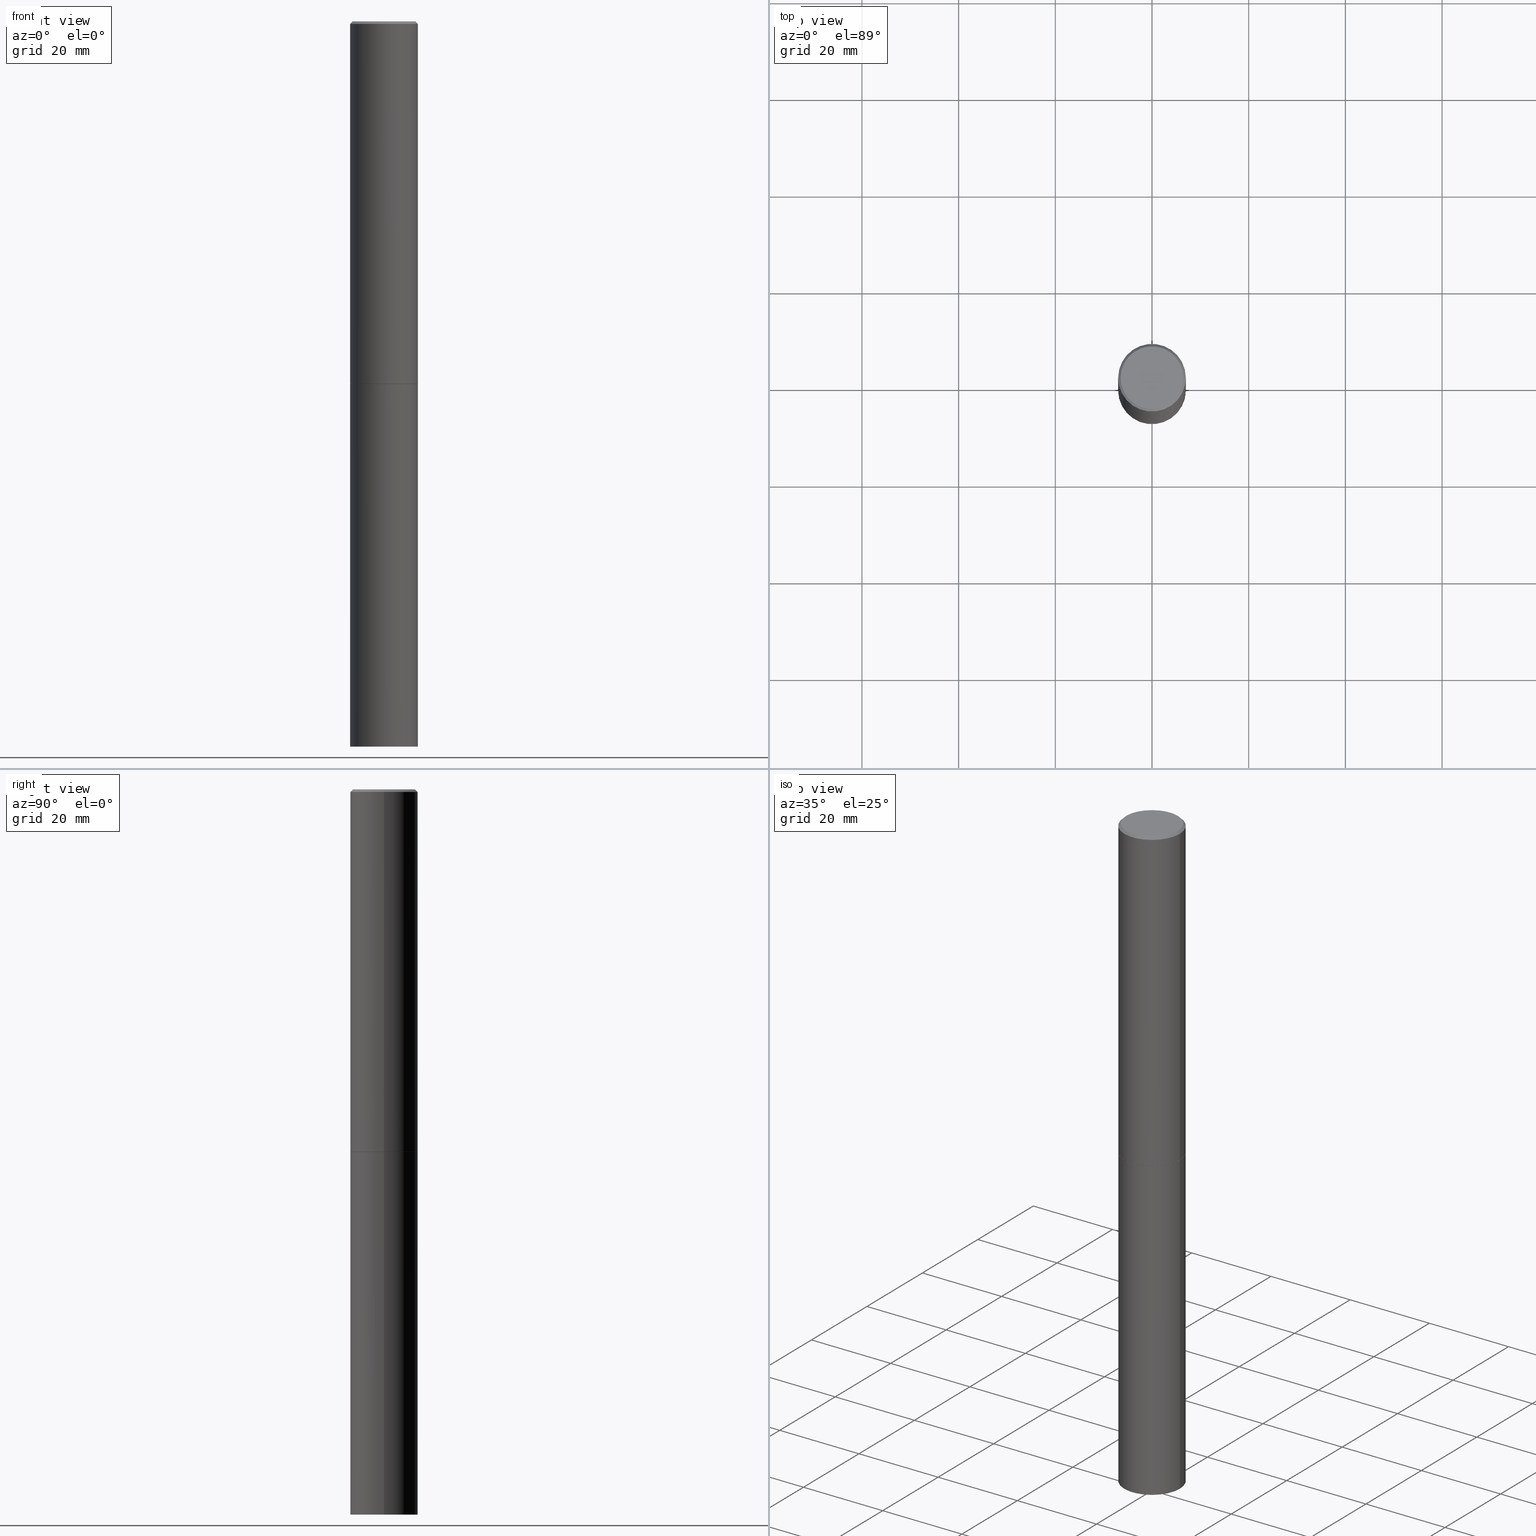
[diagram: canonical four-view strip — front | top / right | iso, engineering-drawing reading convention]
A machine part, canonical four-view strip (front | top / right | iso — engineering-drawing reading convention). The complete STEP part file that produces these views, byte-faithful:
ISO-10303-21;
HEADER;
FILE_DESCRIPTION (( 'STEP AP203' ),
    '1' );
FILE_NAME ('49461.STEP',
    '2024-02-28T22:17:33',
    ( '' ),
    ( '' ),
    'SwSTEP 2.0',
    'SolidWorks 2023',
    '' );
FILE_SCHEMA (( 'CONFIG_CONTROL_DESIGN' ));
ENDSEC;

DATA;
#1 = ADVANCED_FACE ( 'NONE', ( #230 ), #195, .T. ) ;
#2 = SECURITY_CLASSIFICATION ( '', '', #274 ) ;
#3 = DIRECTION ( 'NONE',  ( 1.000000000000000000, -6.982962677686265922E-15, 0.000000000000000000 ) ) ;
#4 = APPROVAL_PERSON_ORGANIZATION ( #106, #302, #15 ) ;
#5 = CARTESIAN_POINT ( 'NONE',  ( 1.924504513970407529E-15, 0.2755999999999896866, -2.952700000000000990 ) ) ;
#6 = DIRECTION ( 'NONE',  ( -2.445468806185136597E-29, 3.491481338843145583E-15, 1.000000000000000000 ) ) ;
#7 = DIRECTION ( 'NONE',  ( 1.000000000000000000, -6.982962677686265922E-15, 0.000000000000000000 ) ) ;
#8 =( NAMED_UNIT ( * ) PLANE_ANGLE_UNIT ( ) SI_UNIT ( $, .RADIAN. ) );
#9 = CARTESIAN_POINT ( 'NONE',  ( 7.220735744022853640E-29, -1.030929694920215659E-14, -2.952700000000000546 ) ) ;
#10 = AXIS2_PLACEMENT_3D ( 'NONE', #76, #105, #81 ) ;
#11 = LOCAL_TIME ( 17, 17, 33.00000000000000000, #342 ) ;
#12 = CC_DESIGN_DATE_AND_TIME_ASSIGNMENT ( #78, #235, ( #233 ) ) ;
#13 = ORIENTED_EDGE ( 'NONE', *, *, #226, .F. ) ;
#14 =( NAMED_UNIT ( * ) SI_UNIT ( $, .STERADIAN. ) SOLID_ANGLE_UNIT ( ) );
#15 = APPROVAL_ROLE ( '' ) ;
#16 = DATE_AND_TIME ( #267, #254 ) ;
#17 = ORIENTED_EDGE ( 'NONE', *, *, #69, .F. ) ;
#18 = VERTEX_POINT ( 'NONE', #288 ) ;
#19 = AXIS2_PLACEMENT_3D ( 'NONE', #30, #359, #177 ) ;
#20 = VERTEX_POINT ( 'NONE', #95 ) ;
#21 =( GEOMETRIC_REPRESENTATION_CONTEXT ( 3 ) GLOBAL_UNCERTAINTY_ASSIGNED_CONTEXT ( ( #324 ) ) GLOBAL_UNIT_ASSIGNED_CONTEXT ( ( #295, #8, #14 ) ) REPRESENTATION_CONTEXT ( 'NONE', 'WORKASPACE' ) );
#22 = APPLICATION_CONTEXT ( 'configuration controlled 3d designs of mechanical parts and assemblies' ) ;
#23 = DIRECTION ( 'NONE',  ( 1.000000000000000000, -6.982962677686267499E-15, 4.876201967404968863E-29 ) ) ;
#24 = ORIENTED_EDGE ( 'NONE', *, *, #103, .T. ) ;
#25 = ORIENTED_EDGE ( 'NONE', *, *, #348, .T. ) ;
#26 = PLANE ( 'NONE',  #31 ) ;
#27 = APPLICATION_PROTOCOL_DEFINITION ( 'international standard', 'config_control_design', 1994, #22 ) ;
#28 = DIRECTION ( 'NONE',  ( 0.7071067811865473507, -7.319954787623256045E-15, -0.7071067811865476838 ) ) ;
#29 = APPROVAL_DATE_TIME ( #325, #167 ) ;
#30 = CARTESIAN_POINT ( 'NONE',  ( 7.220735744022853640E-29, -1.030929694920215659E-14, -2.952700000000000546 ) ) ;
#31 = AXIS2_PLACEMENT_3D ( 'NONE', #5, #119, #225 ) ;
#32 = AXIS2_PLACEMENT_3D ( 'NONE', #326, #185, #236 ) ;
#33 = DIRECTION ( 'NONE',  ( -2.445468806185136597E-29, 3.491481338843145583E-15, 1.000000000000000000 ) ) ;
#34 = DIRECTION ( 'NONE',  ( 1.000000000000000000, -6.982962677686265922E-15, 0.000000000000000000 ) ) ;
#35 = CYLINDRICAL_SURFACE ( 'NONE', #91, 0.2755999999999999006 ) ;
#36 = COORDINATED_UNIVERSAL_TIME_OFFSET ( 5, 0, .BEHIND. ) ;
#37 = DIRECTION ( 'NONE',  ( -1.000000000000000000, 6.982962677686265922E-15, -4.876176775795935793E-29 ) ) ;
#38 = CARTESIAN_POINT ( 'NONE',  ( -0.2746000000000000107, -8.358146596804921801E-15, -2.952700000000000546 ) ) ;
#39 = COORDINATED_UNIVERSAL_TIME_OFFSET ( 5, 0, .BEHIND. ) ;
#40 = ORIENTED_EDGE ( 'NONE', *, *, #320, .T. ) ;
#41 = AXIS2_PLACEMENT_3D ( 'NONE', #343, #87, #140 ) ;
#42 = DESIGN_CONTEXT ( 'detailed design', #265, 'design' ) ;
#43 = CYLINDRICAL_SURFACE ( 'NONE', #164, 0.2755999999999999006 ) ;
#44 = ORIENTED_EDGE ( 'NONE', *, *, #92, .F. ) ;
#45 = DIRECTION ( 'NONE',  ( -2.445468806185136597E-29, 3.491481338843145583E-15, 1.000000000000000000 ) ) ;
#46 = PERSON_AND_ORGANIZATION_ROLE ( 'creator' ) ;
#47 = CC_DESIGN_PERSON_AND_ORGANIZATION_ASSIGNMENT ( #360, #96, ( #233 ) ) ;
#48 = PERSON_AND_ORGANIZATION ( #157, #232 ) ;
#49 = CLOSED_SHELL ( 'NONE', ( #229, #287, #55, #79 ) ) ;
#50 = LINE ( 'NONE', #162, #129 ) ;
#51 = FACE_OUTER_BOUND ( 'NONE', #192, .T. ) ;
#52 = DIRECTION ( 'NONE',  ( 2.445468806185136597E-29, -3.491481338843145583E-15, -1.000000000000000000 ) ) ;
#53 = CARTESIAN_POINT ( 'NONE',  ( 4.890937612370288923E-31, -6.982962677686312563E-17, -0.02000000000000006287 ) ) ;
#54 = ORIENTED_EDGE ( 'NONE', *, *, #356, .F. ) ;
#55 = ADVANCED_FACE ( 'NONE', ( #319 ), #26, .F. ) ;
#56 = DATE_TIME_ROLE ( 'classification_date' ) ;
#57 = ORIENTED_EDGE ( 'NONE', *, *, #356, .T. ) ;
#58 = ORIENTED_EDGE ( 'NONE', *, *, #99, .T. ) ;
#59 = CC_DESIGN_PERSON_AND_ORGANIZATION_ASSIGNMENT ( #158, #159, ( #353 ) ) ;
#60 = DIRECTION ( 'NONE',  ( -2.445468806185136597E-29, 3.491481338843145583E-15, 1.000000000000000000 ) ) ;
#61 = ADVANCED_FACE ( 'NONE', ( #350 ), #314, .F. ) ;
#62 = CC_DESIGN_APPROVAL ( #331, ( #233 ) ) ;
#63 = CARTESIAN_POINT ( 'NONE',  ( 0.2746000000000000107, -1.222681850049480396E-14, -2.952700000000000546 ) ) ;
#64 = DIRECTION ( 'NONE',  ( 1.000000000000000000, -6.982962677686265922E-15, 4.876176775795935793E-29 ) ) ;
#65 = FACE_OUTER_BOUND ( 'NONE', #209, .T. ) ;
#66 = DIRECTION ( 'NONE',  ( -2.445468806185136877E-29, 3.491481338843145188E-15, 1.000000000000000000 ) ) ;
#67 = CARTESIAN_POINT ( 'NONE',  ( 7.220735744022853640E-29, -1.030929694920215659E-14, -2.952700000000000546 ) ) ;
#68 = CARTESIAN_POINT ( 'NONE',  ( -1.043851414335219820E-46, 1.490343170380447200E-32, 4.268512490100411279E-18 ) ) ;
#69 = EDGE_CURVE ( 'NONE', #80, #311, #223, .T. ) ;
#70 = CARTESIAN_POINT ( 'NONE',  ( -0.2755999999999999006, 1.958255779754835406E-15, -1.355658510874251446E-29 ) ) ;
#71 = AXIS2_PLACEMENT_3D ( 'NONE', #9, #351, #121 ) ;
#72 = DIRECTION ( 'NONE',  ( -2.445468806185136597E-29, 3.491481338843145583E-15, 1.000000000000000000 ) ) ;
#73 = MECHANICAL_CONTEXT ( 'NONE', #22, 'mechanical' ) ;
#74 = ORIENTED_EDGE ( 'NONE', *, *, #168, .F. ) ;
#75 = PERSON_AND_ORGANIZATION_ROLE ( 'design_owner' ) ;
#76 = CARTESIAN_POINT ( 'NONE',  ( 7.218290275216666916E-29, -1.030580546786331359E-14, -2.951700000000000212 ) ) ;
#77 = APPROVAL_PERSON_ORGANIZATION ( #284, #167, #137 ) ;
#78 = DATE_AND_TIME ( #263, #202 ) ;
#79 = ADVANCED_FACE ( 'NONE', ( #316 ), #113, .T. ) ;
#80 = VERTEX_POINT ( 'NONE', #310 ) ;
#81 = DIRECTION ( 'NONE',  ( 1.000000000000000000, -6.982962677686264344E-15, 0.000000000000000000 ) ) ;
#82 = EDGE_LOOP ( 'NONE', ( #114, #178 ) ) ;
#83 = CIRCLE ( 'NONE', #329, 0.2755999999999997341 ) ;
#84 = CC_DESIGN_SECURITY_CLASSIFICATION ( #2, ( #353 ) ) ;
#85 = DIRECTION ( 'NONE',  ( -2.445468806185136597E-29, 3.491481338843145583E-15, 1.000000000000000000 ) ) ;
#86 = DIRECTION ( 'NONE',  ( -2.445468806185136597E-29, 3.491481338843145583E-15, 1.000000000000000000 ) ) ;
#87 = DIRECTION ( 'NONE',  ( -2.445468806185136597E-29, 3.491481338843145583E-15, 1.000000000000000000 ) ) ;
#88 = VERTEX_POINT ( 'NONE', #111 ) ;
#89 = LINE ( 'NONE', #169, #361 ) ;
#90 = CARTESIAN_POINT ( 'NONE',  ( -0.2756000000000000116, -1.350586421811533611E-14, -5.905499999999999972 ) ) ;
#91 = AXIS2_PLACEMENT_3D ( 'NONE', #203, #315, #136 ) ;
#92 = EDGE_CURVE ( 'NONE', #20, #197, #257, .T. ) ;
#93 =( LENGTH_UNIT ( ) NAMED_UNIT ( * ) SI_UNIT ( $, .METRE. ) );
#94 = CARTESIAN_POINT ( 'NONE',  ( 1.784845260416607174E-15, 0.2555999999999996608, -8.902883739632567265E-16 ) ) ;
#95 = CARTESIAN_POINT ( 'NONE',  ( -0.2555999999999996608, 1.819760073805038823E-15, 4.268512490087807223E-18 ) ) ;
#96 = PERSON_AND_ORGANIZATION_ROLE ( 'creator' ) ;
#97 = AXIS2_PLACEMENT_3D ( 'NONE', #286, #33, #317 ) ;
#98 = CIRCLE ( 'NONE', #124, 0.2756000000000000116 ) ;
#99 = EDGE_CURVE ( 'NONE', #363, #362, #246, .T. ) ;
#100 = CARTESIAN_POINT ( 'NONE',  ( 0.2756000000000000116, -1.924504513970335348E-15, 1.343874319409359987E-29 ) ) ;
#101 = ORIENTED_EDGE ( 'NONE', *, *, #258, .T. ) ;
#102 = DIRECTION ( 'NONE',  ( 2.438088387897960049E-29, -3.491481338843145188E-15, -1.000000000000000000 ) ) ;
#103 = EDGE_CURVE ( 'NONE', #109, #88, #318, .T. ) ;
#104 = APPROVAL_STATUS ( 'not_yet_approved' ) ;
#105 = DIRECTION ( 'NONE',  ( -2.445468806185136597E-29, 3.491481338843145583E-15, 1.000000000000000000 ) ) ;
#106 = PERSON_AND_ORGANIZATION ( #157, #232 ) ;
#107 = EDGE_CURVE ( 'NONE', #80, #18, #313, .T. ) ;
#108 = ADVANCED_BREP_SHAPE_REPRESENTATION ( '49461', ( #212, #208, #282 ), #21 ) ;
#109 = VERTEX_POINT ( 'NONE', #245 ) ;
#110 = AXIS2_PLACEMENT_3D ( 'NONE', #336, #45, #333 ) ;
#111 = CARTESIAN_POINT ( 'NONE',  ( -0.2755999999999997341, 1.854674887193470078E-15, -0.02000000000000006287 ) ) ;
#112 = ORIENTED_EDGE ( 'NONE', *, *, #187, .T. ) ;
#113 = CYLINDRICAL_SURFACE ( 'NONE', #41, 0.2756000000000000116 ) ;
#114 = ORIENTED_EDGE ( 'NONE', *, *, #99, .F. ) ;
#115 = DIRECTION ( 'NONE',  ( -0.7071067811865473507, 2.468850131082255088E-15, -0.7071067811865476838 ) ) ;
#116 = CC_DESIGN_PERSON_AND_ORGANIZATION_ASSIGNMENT ( #132, #75, ( #289 ) ) ;
#117 = LINE ( 'NONE', #100, #155 ) ;
#118 = ORIENTED_EDGE ( 'NONE', *, *, #338, .F. ) ;
#119 = DIRECTION ( 'NONE',  ( 2.438088387897960049E-29, -3.491481338843145188E-15, -1.000000000000000000 ) ) ;
#120 = DIRECTION ( 'NONE',  ( 1.000000000000000000, -6.982962677686265922E-15, 0.000000000000000000 ) ) ;
#121 = DIRECTION ( 'NONE',  ( 1.000000000000000000, -6.982962677686262766E-15, 0.000000000000000000 ) ) ;
#122 = AXIS2_PLACEMENT_3D ( 'NONE', #216, #85, #306 ) ;
#123 = CONICAL_SURFACE ( 'NONE', #110, 0.2746000000000000107, 0.7853981633973288190 ) ;
#124 = AXIS2_PLACEMENT_3D ( 'NONE', #211, #72, #34 ) ;
#125 = DIRECTION ( 'NONE',  ( 1.000000000000000000, -6.982962677686265922E-15, 0.000000000000000000 ) ) ;
#126 = ADVANCED_FACE ( 'NONE', ( #262 ), #357, .F. ) ;
#127 = ORIENTED_EDGE ( 'NONE', *, *, #207, .F. ) ;
#128 = ORIENTED_EDGE ( 'NONE', *, *, #320, .F. ) ;
#129 = VECTOR ( 'NONE', #28, 39.37007874015748143 ) ;
#130 = DIRECTION ( 'NONE',  ( 0.000000000000000000, 0.000000000000000000, 1.000000000000000000 ) ) ;
#131 = ORIENTED_EDGE ( 'NONE', *, *, #242, .F. ) ;
#132 = PERSON_AND_ORGANIZATION ( #157, #232 ) ;
#133 = CC_DESIGN_PERSON_AND_ORGANIZATION_ASSIGNMENT ( #48, #219, ( #2 ) ) ;
#134 = CARTESIAN_POINT ( 'NONE',  ( 0.2756000000000000116, -2.254344756050852692E-14, -5.905499999999999972 ) ) ;
#135 = CIRCLE ( 'NONE', #10, 0.2756000000000000671 ) ;
#136 = DIRECTION ( 'NONE',  ( 1.000000000000000000, -6.982962677686267499E-15, 4.876176775795935793E-29 ) ) ;
#137 = APPROVAL_ROLE ( '' ) ;
#138 = FACE_OUTER_BOUND ( 'NONE', #166, .T. ) ;
#139 = ORIENTED_EDGE ( 'NONE', *, *, #303, .T. ) ;
#140 = DIRECTION ( 'NONE',  ( 1.000000000000000000, -6.982962677686267499E-15, 4.876176775795935793E-29 ) ) ;
#141 = EDGE_LOOP ( 'NONE', ( #280, #307, #139, #131 ) ) ;
#142 = AXIS2_PLACEMENT_3D ( 'NONE', #227, #102, #200 ) ;
#143 = ORIENTED_EDGE ( 'NONE', *, *, #293, .T. ) ;
#144 = ADVANCED_FACE ( 'NONE', ( #240 ), #231, .T. ) ;
#145 = DIRECTION ( 'NONE',  ( -2.445468806185136597E-29, 3.491481338843145583E-15, 1.000000000000000000 ) ) ;
#146 = AXIS2_PLACEMENT_3D ( 'NONE', #244, #86, #191 ) ;
#147 = VECTOR ( 'NONE', #323, 39.37007874015748143 ) ;
#148 = CARTESIAN_POINT ( 'NONE',  ( 0.2756000000000000116, -1.223380146317248997E-14, -2.952700000000000102 ) ) ;
#149 = CARTESIAN_POINT ( 'NONE',  ( 0.2755999999999997341, -1.960582874962695433E-15, -0.02000000000000006287 ) ) ;
#150 = LINE ( 'NONE', #183, #147 ) ;
#151 = APPROVAL_PERSON_ORGANIZATION ( #334, #331, #154 ) ;
#152 = DIRECTION ( 'NONE',  ( 2.438088387897960049E-29, -3.491481338843145188E-15, -1.000000000000000000 ) ) ;
#153 = DIRECTION ( 'NONE',  ( -0.7071067811864629737, 7.493145998870048082E-15, 0.7071067811866319497 ) ) ;
#154 = APPROVAL_ROLE ( '' ) ;
#155 = VECTOR ( 'NONE', #206, 39.37007874015748143 ) ;
#156 = PLANE ( 'NONE',  #142 ) ;
#157 = PERSON ( 'UNSPECIFIED', 'UNSPECIFIED', 'UNSPECIFIED', ('UNSPECIFIED'), ('UNSPECIFIED'), ('UNSPECIFIED') ) ;
#158 = PERSON_AND_ORGANIZATION ( #157, #232 ) ;
#159 = PERSON_AND_ORGANIZATION_ROLE ( 'design_supplier' ) ;
#160 = CARTESIAN_POINT ( 'NONE',  ( -0.2756000000000000116, -1.350586421811533611E-14, -2.952700000000000102 ) ) ;
#161 = EDGE_LOOP ( 'NONE', ( #118, #366, #101, #74 ) ) ;
#162 = CARTESIAN_POINT ( 'NONE',  ( 0.2755999999999997341, -1.960582874962695433E-15, -0.02000000000000006287 ) ) ;
#163 = ORIENTED_EDGE ( 'NONE', *, *, #332, .F. ) ;
#164 = AXIS2_PLACEMENT_3D ( 'NONE', #217, #349, #260 ) ;
#165 = LOCAL_TIME ( 17, 17, 33.00000000000000000, #36 ) ;
#166 = EDGE_LOOP ( 'NONE', ( #247, #24, #201, #344 ) ) ;
#167 = APPROVAL ( #271, 'UNSPECIFIED' ) ;
#168 = EDGE_CURVE ( 'NONE', #273, #237, #170, .T. ) ;
#169 = CARTESIAN_POINT ( 'NONE',  ( -0.2756000000000000116, 1.958255779754836195E-15, -1.355658510874252007E-29 ) ) ;
#170 = CIRCLE ( 'NONE', #122, 0.2756000000000000116 ) ;
#171 = DIRECTION ( 'NONE',  ( -2.438088387897960049E-29, 3.491481338843145188E-15, 1.000000000000000000 ) ) ;
#172 = DIMENSIONAL_EXPONENTS ( 1.000000000000000000, 0.000000000000000000, 0.000000000000000000, 0.000000000000000000, 0.000000000000000000, 0.000000000000000000, 0.000000000000000000 ) ;
#173 = SHAPE_DEFINITION_REPRESENTATION ( #335, #108 ) ;
#174 = AXIS2_PLACEMENT_3D ( 'NONE', #224, #249, #256 ) ;
#175 = LOCAL_TIME ( 17, 17, 33.00000000000000000, #264 ) ;
#176 = ORIENTED_EDGE ( 'NONE', *, *, #168, .T. ) ;
#177 = DIRECTION ( 'NONE',  ( 1.000000000000000000, -6.982962677686262766E-15, 0.000000000000000000 ) ) ;
#178 = ORIENTED_EDGE ( 'NONE', *, *, #322, .F. ) ;
#179 = DATE_AND_TIME ( #276, #165 ) ;
#180 = EDGE_LOOP ( 'NONE', ( #194, #112, #143, #128 ) ) ;
#181 = CC_DESIGN_PERSON_AND_ORGANIZATION_ASSIGNMENT ( #184, #46, ( #353 ) ) ;
#182 = APPROVAL_STATUS ( 'not_yet_approved' ) ;
#183 = CARTESIAN_POINT ( 'NONE',  ( 0.2755999999999999006, -1.924504513970334560E-15, 1.343874319409359427E-29 ) ) ;
#184 = PERSON_AND_ORGANIZATION ( #157, #232 ) ;
#185 = DIRECTION ( 'NONE',  ( 2.445468806185136597E-29, -3.491481338843145583E-15, -1.000000000000000000 ) ) ;
#186 = DIRECTION ( 'NONE',  ( -1.000000000000000000, 6.982962677686265922E-15, 0.000000000000000000 ) ) ;
#187 = EDGE_CURVE ( 'NONE', #197, #270, #50, .T. ) ;
#188 = AXIS2_PLACEMENT_3D ( 'NONE', #94, #152, #37 ) ;
#189 = CIRCLE ( 'NONE', #268, 0.2756000000000000116 ) ;
#190 = ORIENTED_EDGE ( 'NONE', *, *, #69, .T. ) ;
#191 = DIRECTION ( 'NONE',  ( 1.000000000000000000, -6.982962677686264344E-15, 0.000000000000000000 ) ) ;
#192 = EDGE_LOOP ( 'NONE', ( #58, #243, #54, #241 ) ) ;
#193 = CARTESIAN_POINT ( 'NONE',  ( -0.2755999999999997341, 1.854674887193470078E-15, -0.02000000000000006287 ) ) ;
#194 = ORIENTED_EDGE ( 'NONE', *, *, #348, .F. ) ;
#195 = CONICAL_SURFACE ( 'NONE', #304, 0.2746000000000000107, 0.7853981633973288190 ) ;
#196 = CALENDAR_DATE ( 2024, 28, 2 ) ;
#197 = VERTEX_POINT ( 'NONE', #222 ) ;
#198 = DIRECTION ( 'NONE',  ( -2.445468806185136597E-29, 3.491481338843145583E-15, 1.000000000000000000 ) ) ;
#199 = ORIENTED_EDGE ( 'NONE', *, *, #242, .T. ) ;
#200 = DIRECTION ( 'NONE',  ( -1.000000000000000000, 6.982962677686265922E-15, -4.876176775795935793E-29 ) ) ;
#201 = ORIENTED_EDGE ( 'NONE', *, *, #293, .F. ) ;
#202 = LOCAL_TIME ( 17, 17, 33.00000000000000000, #299 ) ;
#203 = CARTESIAN_POINT ( 'NONE',  ( 0.000000000000000000, 0.000000000000000000, 0.000000000000000000 ) ) ;
#204 = DIRECTION ( 'NONE',  ( 1.000000000000000000, -6.982962677686262766E-15, 0.000000000000000000 ) ) ;
#205 = DIRECTION ( 'NONE',  ( -2.445468806185136877E-29, 3.491481338843145188E-15, 1.000000000000000000 ) ) ;
#206 = DIRECTION ( 'NONE',  ( -2.445468806185136877E-29, 3.491481338843145188E-15, 1.000000000000000000 ) ) ;
#207 = EDGE_CURVE ( 'NONE', #109, #18, #135, .T. ) ;
#208 = MANIFOLD_SOLID_BREP ( 'Body-Move/Copy2[2]', #277 ) ;
#209 = EDGE_LOOP ( 'NONE', ( #251, #44, #40, #199 ) ) ;
#210 = CALENDAR_DATE ( 2024, 28, 2 ) ;
#211 = CARTESIAN_POINT ( 'NONE',  ( 1.444171603492632270E-28, -2.061894304653819197E-14, -5.905499999999999972 ) ) ;
#212 = MANIFOLD_SOLID_BREP ( 'Body-Move/Copy2[1]', #49 ) ;
#213 = CIRCLE ( 'NONE', #321, 0.2555999999999996608 ) ;
#214 = FACE_OUTER_BOUND ( 'NONE', #327, .T. ) ;
#215 = CARTESIAN_POINT ( 'NONE',  ( 4.890937612370288923E-31, -6.982962677686312563E-17, -0.02000000000000006287 ) ) ;
#216 = CARTESIAN_POINT ( 'NONE',  ( 7.220735744022852519E-29, -1.030929694920215502E-14, -2.952700000000000102 ) ) ;
#217 = CARTESIAN_POINT ( 'NONE',  ( 0.000000000000000000, 0.000000000000000000, 0.000000000000000000 ) ) ;
#218 = CARTESIAN_POINT ( 'NONE',  ( -0.2746000000000000107, -8.352848142456699399E-15, -2.952700000000000546 ) ) ;
#219 = PERSON_AND_ORGANIZATION_ROLE ( 'classification_officer' ) ;
#220 = ORIENTED_EDGE ( 'NONE', *, *, #259, .F. ) ;
#221 = ADVANCED_FACE ( 'NONE', ( #214 ), #123, .T. ) ;
#222 = CARTESIAN_POINT ( 'NONE',  ( 0.2555999999999996608, -1.857063081596548059E-15, 4.268512490113146298E-18 ) ) ;
#223 = CIRCLE ( 'NONE', #71, 0.2746000000000000107 ) ;
#224 = CARTESIAN_POINT ( 'NONE',  ( 0.000000000000000000, 0.000000000000000000, 0.000000000000000000 ) ) ;
#225 = DIRECTION ( 'NONE',  ( -1.000000000000000000, 6.982962677686265922E-15, -4.876176775795935793E-29 ) ) ;
#226 = EDGE_CURVE ( 'NONE', #18, #109, #346, .T. ) ;
#227 = CARTESIAN_POINT ( 'NONE',  ( 1.924504513970479316E-15, 0.2755999999999794170, -5.905500000000000860 ) ) ;
#228 = AXIS2_PLACEMENT_3D ( 'NONE', #215, #261, #125 ) ;
#229 = ADVANCED_FACE ( 'NONE', ( #51 ), #340, .T. ) ;
#230 = FACE_OUTER_BOUND ( 'NONE', #285, .T. ) ;
#231 = CONICAL_SURFACE ( 'NONE', #281, 0.2755999999999997341, 0.7853981633974480570 ) ;
#232 = ORGANIZATION ( 'UNSPECIFIED', 'UNSPECIFIED', '' ) ;
#233 = PRODUCT_DEFINITION ( 'UNKNOWN', '', #353, #42 ) ;
#234 = ORIENTED_EDGE ( 'NONE', *, *, #259, .T. ) ;
#235 = DATE_TIME_ROLE ( 'creation_date' ) ;
#236 = DIRECTION ( 'NONE',  ( -1.000000000000000000, 6.982962677686265922E-15, 0.000000000000000000 ) ) ;
#237 = VERTEX_POINT ( 'NONE', #148 ) ;
#238 = DIRECTION ( 'NONE',  ( 1.000000000000000000, 0.000000000000000000, 0.000000000000000000 ) ) ;
#239 = VECTOR ( 'NONE', #153, 39.37007874015748854 ) ;
#240 = FACE_OUTER_BOUND ( 'NONE', #180, .T. ) ;
#241 = ORIENTED_EDGE ( 'NONE', *, *, #258, .F. ) ;
#242 = EDGE_CURVE ( 'NONE', #88, #270, #83, .T. ) ;
#243 = ORIENTED_EDGE ( 'NONE', *, *, #338, .T. ) ;
#244 = CARTESIAN_POINT ( 'NONE',  ( 7.218290275216666916E-29, -1.030580546786331359E-14, -2.951700000000000212 ) ) ;
#245 = CARTESIAN_POINT ( 'NONE',  ( -0.2756000000000000671, -3.229561767565248303E-15, -2.951700000000000212 ) ) ;
#246 = CIRCLE ( 'NONE', #266, 0.2756000000000000116 ) ;
#247 = ORIENTED_EDGE ( 'NONE', *, *, #226, .T. ) ;
#248 = ORIENTED_EDGE ( 'NONE', *, *, #107, .F. ) ;
#249 = DIRECTION ( 'NONE',  ( -2.445468806185136597E-29, 3.491481338843145583E-15, 1.000000000000000000 ) ) ;
#250 = CC_DESIGN_DATE_AND_TIME_ASSIGNMENT ( #309, #56, ( #2 ) ) ;
#251 = ORIENTED_EDGE ( 'NONE', *, *, #187, .F. ) ;
#252 = CARTESIAN_POINT ( 'NONE',  ( 7.220735744022852519E-29, -1.030929694920215502E-14, -2.952700000000000102 ) ) ;
#253 = AXIS2_PLACEMENT_3D ( 'NONE', #255, #171, #64 ) ;
#254 = LOCAL_TIME ( 17, 17, 33.00000000000000000, #39 ) ;
#255 = CARTESIAN_POINT ( 'NONE',  ( 7.220735744022853640E-29, -1.030929694920215659E-14, -2.952700000000000546 ) ) ;
#256 = DIRECTION ( 'NONE',  ( 1.000000000000000000, -6.982962677686267499E-15, 4.876176775795935793E-29 ) ) ;
#257 = CIRCLE ( 'NONE', #97, 0.2555999999999996608 ) ;
#258 = EDGE_CURVE ( 'NONE', #363, #237, #117, .T. ) ;
#259 = EDGE_CURVE ( 'NONE', #311, #80, #328, .T. ) ;
#260 = DIRECTION ( 'NONE',  ( 1.000000000000000000, -6.982962677686267499E-15, 4.876176775795935793E-29 ) ) ;
#261 = DIRECTION ( 'NONE',  ( -2.445468806185136597E-29, 3.491481338843145583E-15, 1.000000000000000000 ) ) ;
#262 = FACE_OUTER_BOUND ( 'NONE', #341, .T. ) ;
#263 = CALENDAR_DATE ( 2024, 28, 2 ) ;
#264 = COORDINATED_UNIVERSAL_TIME_OFFSET ( 5, 0, .BEHIND. ) ;
#265 = APPLICATION_CONTEXT ( 'configuration controlled 3d designs of mechanical parts and assemblies' ) ;
#266 = AXIS2_PLACEMENT_3D ( 'NONE', #354, #60, #7 ) ;
#267 = CALENDAR_DATE ( 2024, 28, 2 ) ;
#268 = AXIS2_PLACEMENT_3D ( 'NONE', #252, #6, #120 ) ;
#269 = ORIENTED_EDGE ( 'NONE', *, *, #332, .T. ) ;
#270 = VERTEX_POINT ( 'NONE', #149 ) ;
#271 = APPROVAL_STATUS ( 'not_yet_approved' ) ;
#272 = ADVANCED_FACE ( 'NONE', ( #297 ), #35, .T. ) ;
#273 = VERTEX_POINT ( 'NONE', #160 ) ;
#274 = SECURITY_CLASSIFICATION_LEVEL ( 'unclassified' ) ;
#275 = ADVANCED_FACE ( 'NONE', ( #138 ), #43, .T. ) ;
#276 = CALENDAR_DATE ( 2024, 28, 2 ) ;
#277 = CLOSED_SHELL ( 'NONE', ( #221, #275, #144, #308, #272, #1, #61, #126 ) ) ;
#278 = CC_DESIGN_APPROVAL ( #302, ( #353 ) ) ;
#279 = ORIENTED_EDGE ( 'NONE', *, *, #107, .T. ) ;
#280 = ORIENTED_EDGE ( 'NONE', *, *, #103, .F. ) ;
#281 = AXIS2_PLACEMENT_3D ( 'NONE', #365, #52, #186 ) ;
#282 = AXIS2_PLACEMENT_3D ( 'NONE', #292, #130, #238 ) ;
#283 = EDGE_LOOP ( 'NONE', ( #57, #176 ) ) ;
#284 = PERSON_AND_ORGANIZATION ( #157, #232 ) ;
#285 = EDGE_LOOP ( 'NONE', ( #163, #234, #279, #127 ) ) ;
#286 = CARTESIAN_POINT ( 'NONE',  ( -1.043851414335219820E-46, 1.490343170380447200E-32, 4.268512490100411279E-18 ) ) ;
#287 = ADVANCED_FACE ( 'NONE', ( #312 ), #156, .T. ) ;
#288 = CARTESIAN_POINT ( 'NONE',  ( 0.2756000000000000671, -1.223030998183364854E-14, -2.951700000000000212 ) ) ;
#289 = PRODUCT ( '49461', '49461', '', ( #73 ) ) ;
#290 = DIRECTION ( 'NONE',  ( 0.7071067811864629737, -2.468850131081371564E-15, 0.7071067811866319497 ) ) ;
#291 = EDGE_LOOP ( 'NONE', ( #17, #220 ) ) ;
#292 = CARTESIAN_POINT ( 'NONE',  ( 0.000000000000000000, 0.000000000000000000, 0.000000000000000000 ) ) ;
#293 = EDGE_CURVE ( 'NONE', #270, #88, #352, .T. ) ;
#294 = VECTOR ( 'NONE', #66, 39.37007874015748143 ) ;
#295 =( CONVERSION_BASED_UNIT ( 'INCH', #355 ) LENGTH_UNIT ( ) NAMED_UNIT ( #172 ) );
#296 = PRODUCT_RELATED_PRODUCT_CATEGORY ( 'detail', '', ( #289 ) ) ;
#297 = FACE_OUTER_BOUND ( 'NONE', #141, .T. ) ;
#298 = LINE ( 'NONE', #38, #239 ) ;
#299 = COORDINATED_UNIVERSAL_TIME_OFFSET ( 5, 0, .BEHIND. ) ;
#300 = APPROVAL_DATE_TIME ( #179, #331 ) ;
#301 = APPROVAL_DATE_TIME ( #16, #302 ) ;
#302 = APPROVAL ( #182, 'UNSPECIFIED' ) ;
#303 = EDGE_CURVE ( 'NONE', #18, #270, #150, .T. ) ;
#304 = AXIS2_PLACEMENT_3D ( 'NONE', #67, #358, #204 ) ;
#305 = CONICAL_SURFACE ( 'NONE', #32, 0.2755999999999997341, 0.7853981633974480570 ) ;
#306 = DIRECTION ( 'NONE',  ( 1.000000000000000000, -6.982962677686265922E-15, 0.000000000000000000 ) ) ;
#307 = ORIENTED_EDGE ( 'NONE', *, *, #207, .T. ) ;
#308 = ADVANCED_FACE ( 'NONE', ( #65 ), #305, .T. ) ;
#309 = DATE_AND_TIME ( #196, #11 ) ;
#310 = CARTESIAN_POINT ( 'NONE',  ( 0.2746000000000000107, -1.222681850049480396E-14, -2.952700000000000546 ) ) ;
#311 = VERTEX_POINT ( 'NONE', #218 ) ;
#312 = FACE_OUTER_BOUND ( 'NONE', #82, .T. ) ;
#313 = LINE ( 'NONE', #63, #337 ) ;
#314 = PLANE ( 'NONE',  #253 ) ;
#315 = DIRECTION ( 'NONE',  ( -2.445468806185136597E-29, 3.491481338843145583E-15, 1.000000000000000000 ) ) ;
#316 = FACE_OUTER_BOUND ( 'NONE', #161, .T. ) ;
#317 = DIRECTION ( 'NONE',  ( 1.000000000000000000, -6.982962677686267499E-15, 4.876201967404968863E-29 ) ) ;
#318 = LINE ( 'NONE', #70, #294 ) ;
#319 = FACE_OUTER_BOUND ( 'NONE', #283, .T. ) ;
#320 = EDGE_CURVE ( 'NONE', #20, #88, #339, .T. ) ;
#321 = AXIS2_PLACEMENT_3D ( 'NONE', #68, #145, #23 ) ;
#322 = EDGE_CURVE ( 'NONE', #362, #363, #98, .T. ) ;
#323 = DIRECTION ( 'NONE',  ( -2.445468806185136877E-29, 3.491481338843145188E-15, 1.000000000000000000 ) ) ;
#324 = UNCERTAINTY_MEASURE_WITH_UNIT (LENGTH_MEASURE( 1.000000000000000082E-05 ), #295, 'distance_accuracy_value', 'NONE');
#325 = DATE_AND_TIME ( #210, #175 ) ;
#326 = CARTESIAN_POINT ( 'NONE',  ( 4.890937612370288923E-31, -6.982962677686312563E-17, -0.02000000000000006287 ) ) ;
#327 = EDGE_LOOP ( 'NONE', ( #190, #269, #13, #248 ) ) ;
#328 = CIRCLE ( 'NONE', #19, 0.2746000000000000107 ) ;
#329 = AXIS2_PLACEMENT_3D ( 'NONE', #53, #198, #3 ) ;
#330 = CC_DESIGN_APPROVAL ( #167, ( #2 ) ) ;
#331 = APPROVAL ( #104, 'UNSPECIFIED' ) ;
#332 = EDGE_CURVE ( 'NONE', #311, #109, #298, .T. ) ;
#333 = DIRECTION ( 'NONE',  ( 1.000000000000000000, -6.982962677686262766E-15, 0.000000000000000000 ) ) ;
#334 = PERSON_AND_ORGANIZATION ( #157, #232 ) ;
#335 = PRODUCT_DEFINITION_SHAPE ( 'NONE', 'NONE',  #233 ) ;
#336 = CARTESIAN_POINT ( 'NONE',  ( 7.220735744022853640E-29, -1.030929694920215659E-14, -2.952700000000000546 ) ) ;
#337 = VECTOR ( 'NONE', #290, 39.37007874015748854 ) ;
#338 = EDGE_CURVE ( 'NONE', #362, #273, #89, .T. ) ;
#339 = LINE ( 'NONE', #193, #347 ) ;
#340 = CYLINDRICAL_SURFACE ( 'NONE', #174, 0.2756000000000000116 ) ;
#341 = EDGE_LOOP ( 'NONE', ( #345, #25 ) ) ;
#342 = COORDINATED_UNIVERSAL_TIME_OFFSET ( 5, 0, .BEHIND. ) ;
#343 = CARTESIAN_POINT ( 'NONE',  ( 0.000000000000000000, 0.000000000000000000, 0.000000000000000000 ) ) ;
#344 = ORIENTED_EDGE ( 'NONE', *, *, #303, .F. ) ;
#345 = ORIENTED_EDGE ( 'NONE', *, *, #92, .T. ) ;
#346 = CIRCLE ( 'NONE', #146, 0.2756000000000000671 ) ;
#347 = VECTOR ( 'NONE', #115, 39.37007874015748143 ) ;
#348 = EDGE_CURVE ( 'NONE', #197, #20, #213, .T. ) ;
#349 = DIRECTION ( 'NONE',  ( -2.445468806185136597E-29, 3.491481338843145583E-15, 1.000000000000000000 ) ) ;
#350 = FACE_OUTER_BOUND ( 'NONE', #291, .T. ) ;
#351 = DIRECTION ( 'NONE',  ( -2.445468806185136597E-29, 3.491481338843145583E-15, 1.000000000000000000 ) ) ;
#352 = CIRCLE ( 'NONE', #228, 0.2755999999999997341 ) ;
#353 = PRODUCT_DEFINITION_FORMATION_WITH_SPECIFIED_SOURCE ( 'ANY', '', #289, .NOT_KNOWN. ) ;
#354 = CARTESIAN_POINT ( 'NONE',  ( 1.444171603492632270E-28, -2.061894304653819197E-14, -5.905499999999999972 ) ) ;
#355 = LENGTH_MEASURE_WITH_UNIT ( LENGTH_MEASURE( 0.02539999999999999897 ), #93 );
#356 = EDGE_CURVE ( 'NONE', #237, #273, #189, .T. ) ;
#357 = PLANE ( 'NONE',  #188 ) ;
#358 = DIRECTION ( 'NONE',  ( -2.445468806185136597E-29, 3.491481338843145583E-15, 1.000000000000000000 ) ) ;
#359 = DIRECTION ( 'NONE',  ( -2.445468806185136597E-29, 3.491481338843145583E-15, 1.000000000000000000 ) ) ;
#360 = PERSON_AND_ORGANIZATION ( #157, #232 ) ;
#361 = VECTOR ( 'NONE', #205, 39.37007874015748143 ) ;
#362 = VERTEX_POINT ( 'NONE', #90 ) ;
#363 = VERTEX_POINT ( 'NONE', #134 ) ;
#364 = APPLICATION_PROTOCOL_DEFINITION ( 'international standard', 'config_control_design', 1994, #265 ) ;
#365 = CARTESIAN_POINT ( 'NONE',  ( 4.890937612370288923E-31, -6.982962677686312563E-17, -0.02000000000000006287 ) ) ;
#366 = ORIENTED_EDGE ( 'NONE', *, *, #322, .T. ) ;
ENDSEC;
END-ISO-10303-21;
